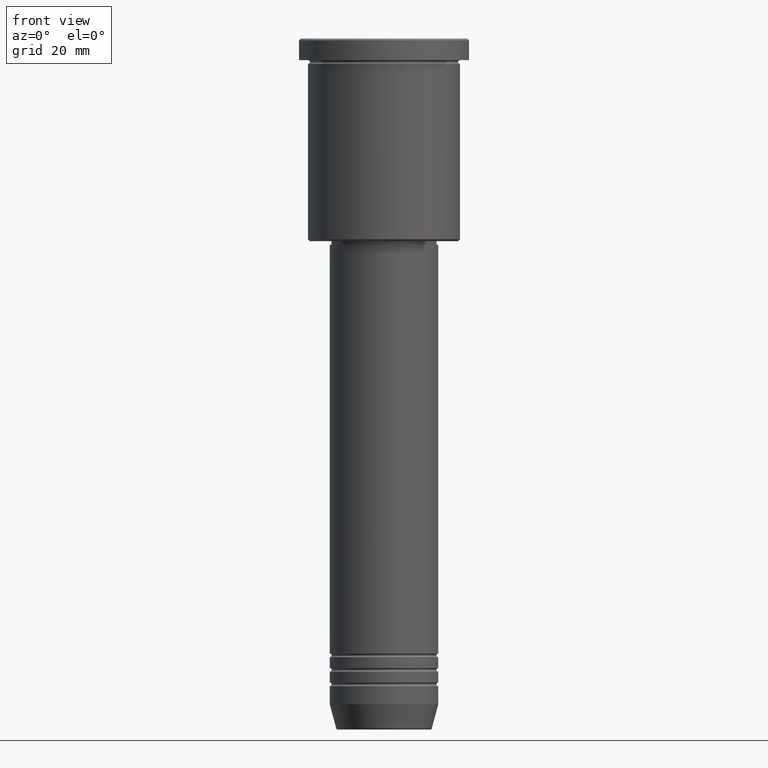
[diagram: clean part render]
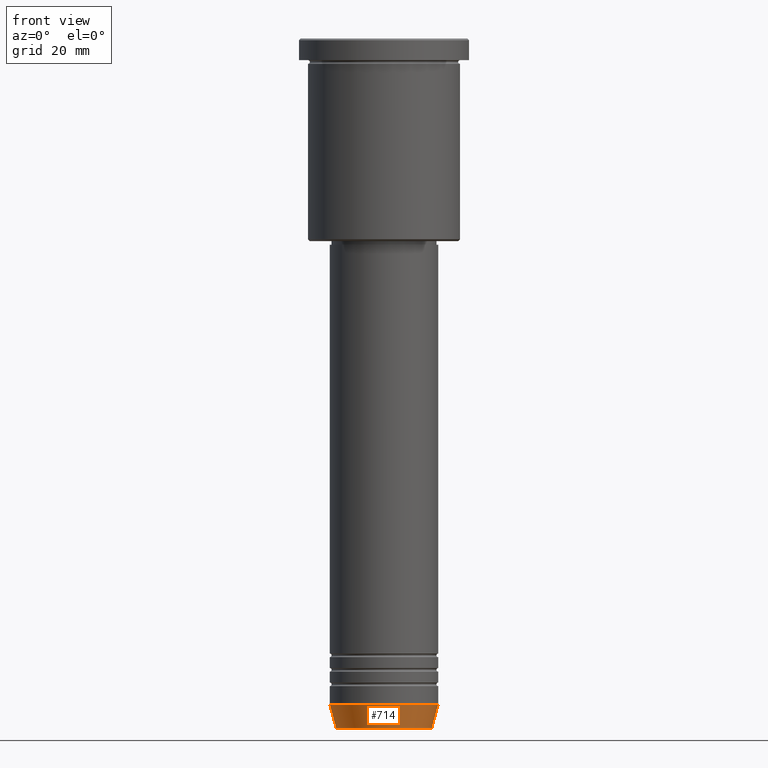
[diagram: same view with one face highlighted and labeled with its STEP entity id]
A machine part, front view. The second image highlights one B-rep face of the part: STEP entity #714.
In plain terms, the highlighted conical surface has half-angle 15 deg.
Its self-contained STEP definition (entity closure, byte-faithful):
#34 = CARTESIAN_POINT ( 'NONE',  ( 0.000000000000000000, 0.000000000000000000, -184.0000000000000000 ) ) ;
#35 = CARTESIAN_POINT ( 'NONE',  ( -13.22365507213719660, 1.728200442216588780E-15, -190.6294095225512422 ) ) ;
#38 = DIRECTION ( 'NONE',  ( 1.000000000000000000, 0.000000000000000000, 0.000000000000000000 ) ) ;
#100 = FACE_OUTER_BOUND ( 'NONE', #797, .T. ) ;
#107 = VERTEX_POINT ( 'NONE', #185 ) ;
#131 = CARTESIAN_POINT ( 'NONE',  ( 0.000000000000000000, 0.000000000000000000, -190.6294095225512422 ) ) ;
#136 = LINE ( 'NONE', #246, #523 ) ;
#185 = CARTESIAN_POINT ( 'NONE',  ( -15.00000000000000000, 1.836970198721029589E-15, -184.0000000000000000 ) ) ;
#246 = CARTESIAN_POINT ( 'NONE',  ( -15.00000000000000000, 1.836970198721029589E-15, -184.0000000000000000 ) ) ;
#250 = CARTESIAN_POINT ( 'NONE',  ( 15.00000000000000000, 0.000000000000000000, -184.0000000000000000 ) ) ;
#302 = CARTESIAN_POINT ( 'NONE',  ( 13.22365507213719482, 0.000000000000000000, -190.6294095225512422 ) ) ;
#331 = VERTEX_POINT ( 'NONE', #302 ) ;
#339 = ORIENTED_EDGE ( 'NONE', *, *, #397, .T. ) ;
#364 = AXIS2_PLACEMENT_3D ( 'NONE', #574, #381, #757 ) ;
#376 = EDGE_CURVE ( 'NONE', #891, #107, #136, .T. ) ;
#381 = DIRECTION ( 'NONE',  ( -0.000000000000000000, -0.000000000000000000, 1.000000000000000000 ) ) ;
#394 = DIRECTION ( 'NONE',  ( 0.2588190451025213501, 0.000000000000000000, 0.9659258262890680902 ) ) ;
#397 = EDGE_CURVE ( 'NONE', #891, #331, #579, .T. ) ;
#466 = AXIS2_PLACEMENT_3D ( 'NONE', #34, #1125, #38 ) ;
#489 = LINE ( 'NONE', #1108, #982 ) ;
#501 = DIRECTION ( 'NONE',  ( -0.000000000000000000, -0.000000000000000000, 1.000000000000000000 ) ) ;
#508 = DIRECTION ( 'NONE',  ( 1.000000000000000000, 0.000000000000000000, 0.000000000000000000 ) ) ;
#523 = VECTOR ( 'NONE', #790, 1000.000000000000000 ) ;
#536 = VERTEX_POINT ( 'NONE', #250 ) ;
#549 = ORIENTED_EDGE ( 'NONE', *, *, #700, .T. ) ;
#562 = CONICAL_SURFACE ( 'NONE', #364, 15.00000000000000000, 0.2617993877991500740 ) ;
#574 = CARTESIAN_POINT ( 'NONE',  ( 0.000000000000000000, 0.000000000000000000, -184.0000000000000000 ) ) ;
#579 = CIRCLE ( 'NONE', #946, 13.22365507213719482 ) ;
#700 = EDGE_CURVE ( 'NONE', #331, #536, #489, .T. ) ;
#714 = ADVANCED_FACE ( 'NONE', ( #100 ), #562, .T. ) ;
#757 = DIRECTION ( 'NONE',  ( 1.000000000000000000, 0.000000000000000000, 0.000000000000000000 ) ) ;
#790 = DIRECTION ( 'NONE',  ( -0.2588190451025213501, 3.169619151431772337E-17, 0.9659258262890680902 ) ) ;
#797 = EDGE_LOOP ( 'NONE', ( #1061, #339, #549, #1077 ) ) ;
#891 = VERTEX_POINT ( 'NONE', #35 ) ;
#946 = AXIS2_PLACEMENT_3D ( 'NONE', #131, #501, #508 ) ;
#982 = VECTOR ( 'NONE', #394, 1000.000000000000000 ) ;
#983 = CIRCLE ( 'NONE', #466, 15.00000000000000000 ) ;
#1061 = ORIENTED_EDGE ( 'NONE', *, *, #376, .F. ) ;
#1077 = ORIENTED_EDGE ( 'NONE', *, *, #1097, .F. ) ;
#1097 = EDGE_CURVE ( 'NONE', #107, #536, #983, .T. ) ;
#1108 = CARTESIAN_POINT ( 'NONE',  ( 15.00000000000000000, 0.000000000000000000, -184.0000000000000000 ) ) ;
#1125 = DIRECTION ( 'NONE',  ( -0.000000000000000000, -0.000000000000000000, 1.000000000000000000 ) ) ;